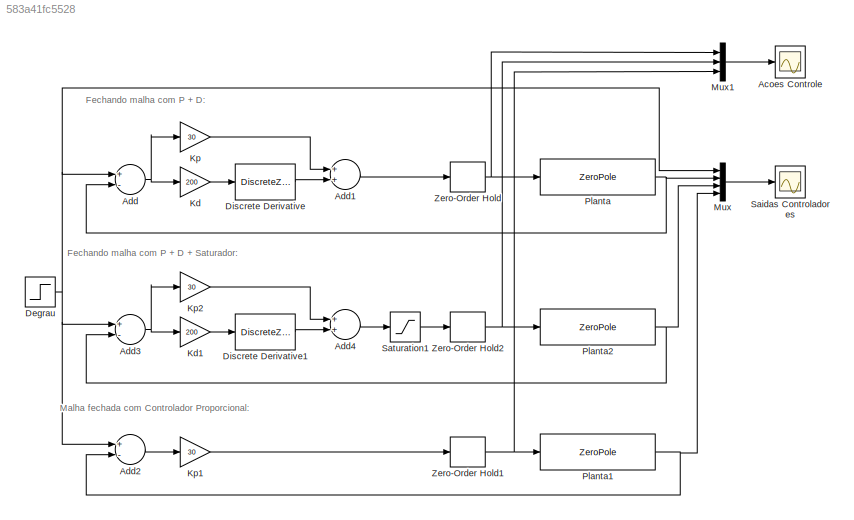
MODEL slx_583a41fc5528
KIND model
CONFIG AbsTol = auto
CONFIG EnableMultiTasking = off
CONFIG FixedStep = auto
CONFIG MaxStep = auto
CONFIG MinStep = auto
CONFIG RelTol = 1e-3
CONFIG SampleTimeConstraint = Unconstrained
CONFIG Solver = VariableStepAuto
CONFIG SolverName = VariableStepAuto
CONFIG StartTime = 0.0
CONFIG StopTime = 7
BLOCK [Scope] Acoes Controle
  Floating = off
  NumInputPorts = 1
  Ports = [1]
  ScopeSpecificationString = Simulink.scopes.TimeScopeBlockCfg('CurrentConfiguration', extmgr.ConfigurationSet(extmgr.Configuration('Core','General UI',true,'FigureColor',[1 1 1]),extmgr.Configuration('Core','Source UI',true),extmgr.Configuration('Sources','WiredSimulink',true,'DataLoggingVariableName','ScopeData1'),extmgr.Configuration('Visuals','Time Domain',true,'SerializedDisplays',{struct('MinYLimReal','-36.67893','MaxYL...<+1883ch>
BLOCK [Sum] Add
  InputSameDT = off
  Inputs = +-
  OutDataTypeStr = Inherit: Inherit via internal rule
  Ports = [2, 1]
  SaturateOnIntegerOverflow = off
BLOCK [Sum] Add1
  InputSameDT = off
  OutDataTypeStr = Inherit: Inherit via internal rule
  Ports = [2, 1]
  SaturateOnIntegerOverflow = off
BLOCK [Sum] Add2
  InputSameDT = off
  Inputs = +-
  OutDataTypeStr = Inherit: Inherit via internal rule
  Ports = [2, 1]
  SaturateOnIntegerOverflow = off
BLOCK [Sum] Add3
  InputSameDT = off
  Inputs = +-
  OutDataTypeStr = Inherit: Inherit via internal rule
  Ports = [2, 1]
  SaturateOnIntegerOverflow = off
BLOCK [Sum] Add4
  InputSameDT = off
  OutDataTypeStr = Inherit: Inherit via internal rule
  Ports = [2, 1]
  SaturateOnIntegerOverflow = off
BLOCK [Step] Degrau
  SampleTime = 0
BLOCK [DiscreteZeroPole] Discrete Derivative
  Gain = 1
  Poles = [0]
  SampleTime = 0.1
BLOCK [DiscreteZeroPole] Discrete Derivative1
  Gain = 1
  Poles = [0]
  SampleTime = 0.1
BLOCK [Gain] Kd
  Gain = 200
  OutDataTypeStr = Inherit: Inherit via internal rule
  ParamDataTypeStr = Inherit: Inherit via internal rule
  SaturateOnIntegerOverflow = off
BLOCK [Gain] Kd1
  Gain = 200
  OutDataTypeStr = Inherit: Inherit via internal rule
  ParamDataTypeStr = Inherit: Inherit via internal rule
  SaturateOnIntegerOverflow = off
BLOCK [Gain] Kp
  Gain = 30
  OutDataTypeStr = Inherit: Inherit via internal rule
  ParamDataTypeStr = Inherit: Inherit via internal rule
  SaturateOnIntegerOverflow = off
BLOCK [Gain] Kp1
  Gain = 30
  OutDataTypeStr = Inherit: Inherit via internal rule
  ParamDataTypeStr = Inherit: Inherit via internal rule
  SaturateOnIntegerOverflow = off
BLOCK [Gain] Kp2
  Gain = 30
  OutDataTypeStr = Inherit: Inherit via internal rule
  ParamDataTypeStr = Inherit: Inherit via internal rule
  SaturateOnIntegerOverflow = off
BLOCK [Mux] Mux
  DisplayOption = bar
  Ports = [4, 1]
BLOCK [Mux] Mux1
  DisplayOption = bar
  Inputs = 3
  Ports = [3, 1]
BLOCK [ZeroPole] Planta
  Poles = [-1 -2 -10]
  Zeros = [ ]
BLOCK [ZeroPole] Planta1
  Poles = [-1 -2 -10]
  Zeros = [ ]
BLOCK [ZeroPole] Planta2
  Poles = [-1 -2 -10]
  Zeros = [ ]
BLOCK [Scope] Saidas Controladores
  Floating = off
  NumInputPorts = 1
  Ports = [1]
  ScopeSpecificationString = Simulink.scopes.TimeScopeBlockCfg('CurrentConfiguration', extmgr.ConfigurationSet(extmgr.Configuration('Core','General UI',true,'FigureColor',[1 1 1]),extmgr.Configuration('Core','Source UI',true),extmgr.Configuration('Sources','WiredSimulink',true,'DataLoggingVariableName','ScopeData1'),extmgr.Configuration('Visuals','Time Domain',true,'SerializedDisplays',{struct('MinYLimReal','-0.125','MaxYLimR...<+1972ch>
BLOCK [Saturate] Saturation1
  InputPortMap = u0
  LowerLimit = 0
  Ports = [1, 1]
  UpperLimit = 100
BLOCK [ZeroOrderHold] Zero-Order Hold
  SampleTime = 0.1
BLOCK [ZeroOrderHold] Zero-Order Hold1
  SampleTime = 0.1
BLOCK [ZeroOrderHold] Zero-Order Hold2
  SampleTime = 0.1
ANNOTATION (root): Fechando malha com P + D + Saturador:
ANNOTATION (root): Fechando malha com P + D:
ANNOTATION (root): Malha fechada com Controlador Proporcional:
LINE Add1:1 -> Zero-Order Hold:1
LINE Add2:1 -> Kp1:1
NET Add3:1 -> Kd1:1, Kp2:1
LINE Add4:1 -> Saturation1:1
NET Add:1 -> Kd:1, Kp:1
NET Degrau:1 -> Add2:1, Add3:1, Add:1, Mux:1
LINE Discrete Derivative1:1 -> Add4:2
LINE Discrete Derivative:1 -> Add1:2
LINE Kd1:1 -> Discrete Derivative1:1
LINE Kd:1 -> Discrete Derivative:1
LINE Kp1:1 -> Zero-Order Hold1:1
LINE Kp2:1 -> Add4:1
LINE Kp:1 -> Add1:1
LINE Mux1:1 -> Acoes Controle:1
LINE Mux:1 -> Saidas Controladores:1
NET Planta1:1 -> Add2:2, Mux:4
NET Planta2:1 -> Add3:2, Mux:3
NET Planta:1 -> Add:2, Mux:2
LINE Saturation1:1 -> Zero-Order Hold2:1
NET Zero-Order Hold1:1 -> Mux1:3, Planta1:1
NET Zero-Order Hold2:1 -> Mux1:2, Planta2:1
NET Zero-Order Hold:1 -> Mux1:1, Planta:1
note: NET lines group one-source signal fan-out (src -> all destinations, sorted); 1:1 wires keep LINE
